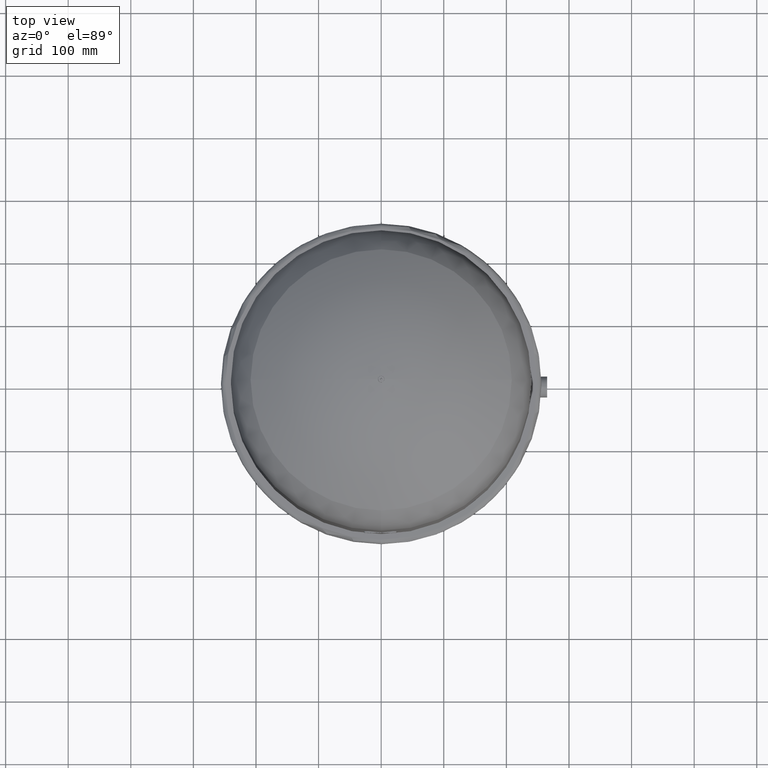
[diagram: clean part render]
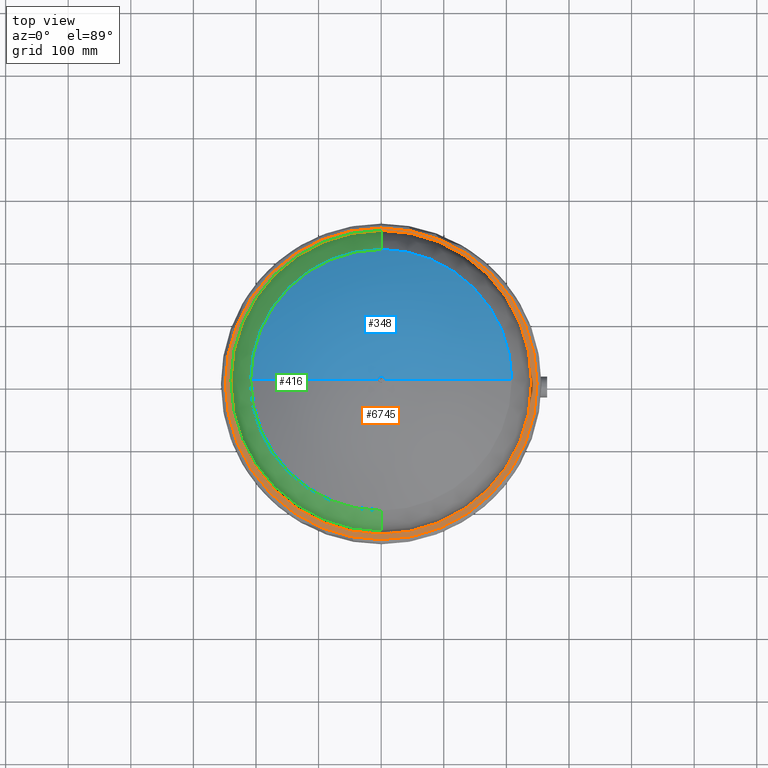
[diagram: same view with three faces highlighted in distinct colors, each labeled with its STEP entity id]
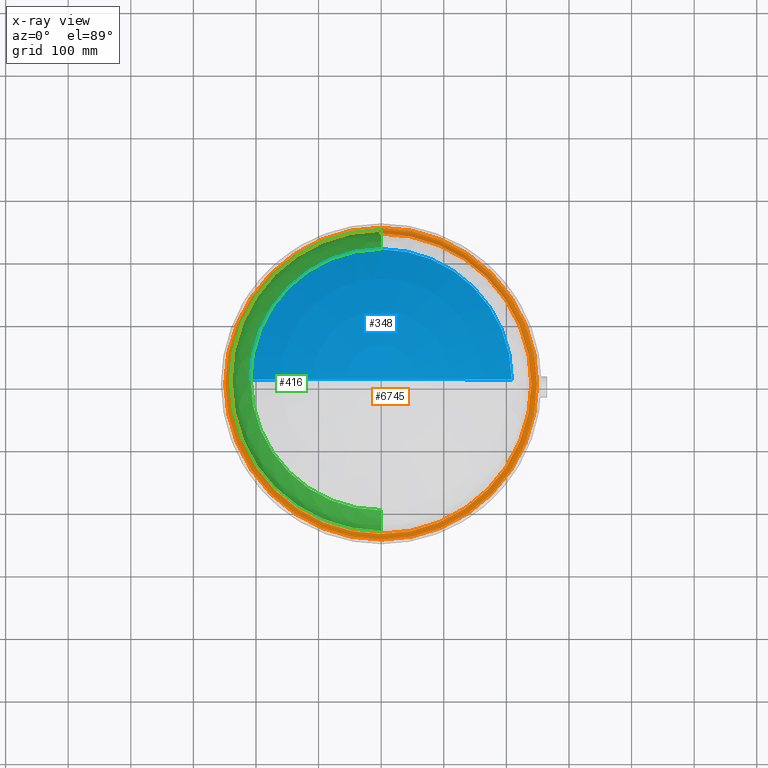
[diagram: x-ray of the same camera — body ghosted, the three highlighted faces saturated]
A machine part, top view with three faces highlighted in distinct colors.
The next image is the same camera in x-ray (body ghosted, the three faces saturated) — at least one of them is partly hidden behind the body in this view.
Their STEP definitions:

[orange] entity #6745 — the highlighted planar face has unit normal (0, 0, 1).
#6520=CARTESIAN_POINT('',(-240.0,-6.582477E-016,470.75));
#6521=VERTEX_POINT('',#6520);
#6537=CARTESIAN_POINT('',(240.0,-3.004880E-014,470.75));
#6538=VERTEX_POINT('',#6537);
#6545=CARTESIAN_POINT('',(0.0,-6.582477E-016,470.75));
#6546=DIRECTION('',(0.0,0.0,-1.0));
#6547=DIRECTION('',(-1.0,0.0,0.0));
#6548=AXIS2_PLACEMENT_3D('',#6545,#6546,#6547);
#6549=CIRCLE('',#6548,240.0);
#6550=EDGE_CURVE('',#6521,#6538,#6549,.T.);
#6674=CARTESIAN_POINT('',(0.0,249.00000000000003,470.75));
#6675=VERTEX_POINT('',#6674);
#6691=CARTESIAN_POINT('',(-3.049270E-014,-249.00000000000003,470.75));
#6692=VERTEX_POINT('',#6691);
#6700=CARTESIAN_POINT('',(-249.00000000000003,-6.582477E-016,470.75));
#6701=VERTEX_POINT('',#6700);
#6702=CARTESIAN_POINT('',(0.0,-6.582477E-016,470.75));
#6703=DIRECTION('',(0.0,0.0,-1.0));
#6704=DIRECTION('',(-1.0,0.0,0.0));
#6705=AXIS2_PLACEMENT_3D('',#6702,#6703,#6704);
#6706=CIRCLE('',#6705,249.00000000000003);
#6707=EDGE_CURVE('',#6692,#6701,#6706,.T.);
#6709=CARTESIAN_POINT('',(0.0,-6.582477E-016,470.75));
#6710=DIRECTION('',(0.0,0.0,-1.0));
#6711=DIRECTION('',(-1.0,0.0,0.0));
#6712=AXIS2_PLACEMENT_3D('',#6709,#6710,#6711);
#6713=CIRCLE('',#6712,249.00000000000003);
#6714=EDGE_CURVE('',#6701,#6675,#6713,.T.);
#6719=CARTESIAN_POINT('',(-244.50000000000003,-6.582477E-016,470.75));
#6720=DIRECTION('',(0.0,0.0,1.0));
#6721=DIRECTION('',(0.0,-1.0,0.0));
#6722=AXIS2_PLACEMENT_3D('',#6719,#6720,#6721);
#6723=PLANE('',#6722);
#6724=ORIENTED_EDGE('',*,*,#6714,.F.);
#6725=ORIENTED_EDGE('',*,*,#6707,.F.);
#6726=CARTESIAN_POINT('',(0.0,-6.582477E-016,470.75));
#6727=DIRECTION('',(0.0,0.0,-1.0));
#6728=DIRECTION('',(-1.0,0.0,0.0));
#6729=AXIS2_PLACEMENT_3D('',#6726,#6727,#6728);
#6730=CIRCLE('',#6729,249.00000000000003);
#6731=EDGE_CURVE('',#6675,#6692,#6730,.T.);
#6732=ORIENTED_EDGE('',*,*,#6731,.F.);
#6733=EDGE_LOOP('',(#6724,#6725,#6732));
#6734=FACE_OUTER_BOUND('',#6733,.T.);
#6735=ORIENTED_EDGE('',*,*,#6550,.T.);
#6736=CARTESIAN_POINT('',(0.0,-6.582477E-016,470.75));
#6737=DIRECTION('',(0.0,0.0,-1.0));
#6738=DIRECTION('',(-1.0,0.0,0.0));
#6739=AXIS2_PLACEMENT_3D('',#6736,#6737,#6738);
#6740=CIRCLE('',#6739,240.0);
#6741=EDGE_CURVE('',#6538,#6521,#6740,.T.);
#6742=ORIENTED_EDGE('',*,*,#6741,.T.);
#6743=EDGE_LOOP('',(#6735,#6742));
#6744=FACE_BOUND('',#6743,.T.);
#6745=ADVANCED_FACE('',(#6734,#6744),#6723,.T.);

[blue] entity #348 — the highlighted spherical surface has radius 354 mm.
#269=CARTESIAN_POINT('',(-2.554198E-014,208.57297297297296,833.03026928144413));
#270=VERTEX_POINT('',#269);
#278=CARTESIAN_POINT('',(208.57297297297296,-6.502875E-014,833.03026928144413));
#279=VERTEX_POINT('',#278);
#280=CARTESIAN_POINT('',(0.0,-1.248584E-014,833.03026928144413));
#281=DIRECTION('',(0.0,0.0,1.0));
#282=DIRECTION('',(-1.0,0.0,0.0));
#283=AXIS2_PLACEMENT_3D('',#280,#281,#282);
#284=CIRCLE('',#283,208.57297297297296);
#285=EDGE_CURVE('',#279,#270,#284,.T.);
#302=CARTESIAN_POINT('',(-2.167553E-014,-6.502875E-014,901.0));
#303=VERTEX_POINT('',#302);
#304=CARTESIAN_POINT('',(0.0,-6.502875E-014,547.0));
#305=DIRECTION('',(0.0,1.0,0.0));
#306=DIRECTION('',(1.0,0.0,0.0));
#307=AXIS2_PLACEMENT_3D('',#304,#305,#306);
#308=CIRCLE('',#307,354.0);
#309=EDGE_CURVE('',#303,#279,#308,.T.);
#311=CARTESIAN_POINT('',(-208.57297297297296,-1.248584E-014,833.03026928144413));
#312=VERTEX_POINT('',#311);
#313=CARTESIAN_POINT('',(0.0,-6.502875E-014,547.0));
#314=DIRECTION('',(0.0,-1.0,0.0));
#315=DIRECTION('',(-1.0,0.0,0.0));
#316=AXIS2_PLACEMENT_3D('',#313,#314,#315);
#317=CIRCLE('',#316,354.0);
#318=EDGE_CURVE('',#303,#312,#317,.T.);
#331=CARTESIAN_POINT('',(0.0,-6.502875E-014,547.0));
#332=DIRECTION('',(0.0,0.0,1.0));
#333=DIRECTION('',(1.0,0.0,0.0));
#334=AXIS2_PLACEMENT_3D('',#331,#332,#333);
#335=SPHERICAL_SURFACE('',#334,354.0);
#336=ORIENTED_EDGE('',*,*,#309,.T.);
#337=ORIENTED_EDGE('',*,*,#285,.T.);
#338=CARTESIAN_POINT('',(0.0,-1.248584E-014,833.03026928144413));
#339=DIRECTION('',(0.0,0.0,1.0));
#340=DIRECTION('',(-1.0,0.0,0.0));
#341=AXIS2_PLACEMENT_3D('',#338,#339,#340);
#342=CIRCLE('',#341,208.57297297297296);
#343=EDGE_CURVE('',#270,#312,#342,.T.);
#344=ORIENTED_EDGE('',*,*,#343,.T.);
#345=ORIENTED_EDGE('',*,*,#318,.F.);
#346=EDGE_LOOP('',(#336,#337,#344,#345));
#347=FACE_OUTER_BOUND('',#346,.T.);
#348=ADVANCED_FACE('',(#347),#335,.T.);

[green] entity #416 — the highlighted face is a freeform B-spline surface patch.
#153=CARTESIAN_POINT('',(-240.00000000000006,-2.384045E-014,771.21864329265759));
#154=VERTEX_POINT('',#153);
#178=CARTESIAN_POINT('',(0.0,-240.00000000000009,771.21864329265759));
#179=VERTEX_POINT('',#178);
#187=CARTESIAN_POINT('',(0.0,-2.384045E-014,771.21864329265759));
#188=DIRECTION('',(0.0,0.0,1.0));
#189=DIRECTION('',(-1.0,0.0,0.0));
#190=AXIS2_PLACEMENT_3D('',#187,#188,#189);
#191=CIRCLE('',#190,240.00000000000006);
#192=EDGE_CURVE('',#154,#179,#191,.T.);
#250=CARTESIAN_POINT('',(0.0,-208.57297297297296,833.03026928144413));
#251=VERTEX_POINT('',#250);
#252=CARTESIAN_POINT('',(0.0,-163.50000000000003,771.21864329265759));
#253=DIRECTION('',(-1.0,0.0,0.0));
#254=DIRECTION('',(0.0,-1.0,0.0));
#255=AXIS2_PLACEMENT_3D('',#252,#253,#254);
#256=CIRCLE('',#255,76.5);
#257=EDGE_CURVE('',#179,#251,#256,.T.);
#260=CARTESIAN_POINT('',(-2.939055E-014,240.00000000000003,771.21864329265759));
#261=VERTEX_POINT('',#260);
#269=CARTESIAN_POINT('',(-2.554198E-014,208.57297297297296,833.03026928144413));
#270=VERTEX_POINT('',#269);
#271=CARTESIAN_POINT('',(-2.002231E-014,163.49999999999997,771.21864329265759));
#272=DIRECTION('',(1.0,0.0,0.0));
#273=DIRECTION('',(0.0,1.0,0.0));
#274=AXIS2_PLACEMENT_3D('',#271,#272,#273);
#275=CIRCLE('',#274,76.5);
#276=EDGE_CURVE('',#261,#270,#275,.T.);
#311=CARTESIAN_POINT('',(-208.57297297297296,-1.248584E-014,833.03026928144413));
#312=VERTEX_POINT('',#311);
#320=CARTESIAN_POINT('',(0.0,-1.248584E-014,833.03026928144413));
#321=DIRECTION('',(0.0,0.0,1.0));
#322=DIRECTION('',(-1.0,0.0,0.0));
#323=AXIS2_PLACEMENT_3D('',#320,#321,#322);
#324=CIRCLE('',#323,208.57297297297296);
#325=EDGE_CURVE('',#312,#251,#324,.T.);
#338=CARTESIAN_POINT('',(0.0,-1.248584E-014,833.03026928144413));
#339=DIRECTION('',(0.0,0.0,1.0));
#340=DIRECTION('',(-1.0,0.0,0.0));
#341=AXIS2_PLACEMENT_3D('',#338,#339,#340);
#342=CIRCLE('',#341,208.57297297297296);
#343=EDGE_CURVE('',#270,#312,#342,.T.);
#349=CARTESIAN_POINT('',(-1.065408E-014,86.999999999999972,771.21864329265759));
#350=CARTESIAN_POINT('',(-1.065408E-014,86.999999999999943,847.71864329265748));
#351=CARTESIAN_POINT('',(-2.002231E-014,163.49999999999997,847.71864329265759));
#352=CARTESIAN_POINT('',(-2.939055E-014,240.0,847.7186432926577));
#353=CARTESIAN_POINT('',(-2.939055E-014,239.99999999999997,771.21864329265759));
#354=CARTESIAN_POINT('',(-87.0,86.999999999999957,771.21864329265759));
#355=CARTESIAN_POINT('',(-86.999999999999957,86.999999999999929,847.71864329265759));
#356=CARTESIAN_POINT('',(-163.49999999999997,163.49999999999991,847.71864329265759));
#357=CARTESIAN_POINT('',(-239.99999999999997,239.99999999999991,847.71864329265759));
#358=CARTESIAN_POINT('',(-239.99999999999994,239.99999999999986,771.21864329265759));
#359=CARTESIAN_POINT('',(-87.0,-3.449452E-014,771.21864329265759));
#360=CARTESIAN_POINT('',(-86.999999999999957,-2.044170E-014,847.71864329265748));
#361=CARTESIAN_POINT('',(-163.49999999999997,-2.980994E-014,847.71864329265759));
#362=CARTESIAN_POINT('',(-240.0,-3.917818E-014,847.7186432926577));
#363=CARTESIAN_POINT('',(-240.0,-5.323100E-014,771.21864329265759));
#364=CARTESIAN_POINT('',(-86.999999999999972,-87.000000000000014,771.21864329265759));
#365=CARTESIAN_POINT('',(-86.999999999999929,-86.999999999999957,847.71864329265759));
#366=CARTESIAN_POINT('',(-163.49999999999991,-163.49999999999997,847.71864329265759));
#367=CARTESIAN_POINT('',(-239.99999999999991,-239.99999999999997,847.71864329265759));
#368=CARTESIAN_POINT('',(-239.99999999999991,-240.0,771.21864329265759));
#369=CARTESIAN_POINT('',(1.065408E-014,-87.000000000000028,771.21864329265759));
#370=CARTESIAN_POINT('',(1.065408E-014,-86.999999999999972,847.71864329265748));
#371=CARTESIAN_POINT('',(2.002231E-014,-163.49999999999997,847.71864329265759));
#372=CARTESIAN_POINT('',(2.939055E-014,-240.0,847.7186432926577));
#373=CARTESIAN_POINT('',(2.939055E-014,-240.00000000000003,771.21864329265759));
#374=CARTESIAN_POINT('',(87.0,-87.0,771.21864329265759));
#375=CARTESIAN_POINT('',(86.999999999999957,-86.999999999999943,847.71864329265759));
#376=CARTESIAN_POINT('',(163.49999999999997,-163.49999999999994,847.71864329265759));
#377=CARTESIAN_POINT('',(239.99999999999997,-239.99999999999991,847.71864329265759));
#378=CARTESIAN_POINT('',(239.99999999999994,-239.99999999999994,771.21864329265759));
#379=CARTESIAN_POINT('',(87.0,-1.318637E-014,771.21864329265759));
#380=CARTESIAN_POINT('',(86.999999999999957,8.664488E-016,847.71864329265748));
#381=CARTESIAN_POINT('',(163.49999999999997,1.023469E-014,847.71864329265759));
#382=CARTESIAN_POINT('',(240.0,1.960293E-014,847.7186432926577));
#383=CARTESIAN_POINT('',(240.0,5.550104E-015,771.21864329265759));
#384=CARTESIAN_POINT('',(86.999999999999972,86.999999999999972,771.21864329265759));
#385=CARTESIAN_POINT('',(86.999999999999929,86.999999999999943,847.71864329265759));
#386=CARTESIAN_POINT('',(163.49999999999991,163.49999999999994,847.71864329265759));
#387=CARTESIAN_POINT('',(239.99999999999991,239.99999999999997,847.71864329265759));
#388=CARTESIAN_POINT('',(239.99999999999991,239.99999999999994,771.21864329265759));
#389=CARTESIAN_POINT('',(-1.065408E-014,86.999999999999972,771.21864329265759));
#390=CARTESIAN_POINT('',(-1.065408E-014,86.999999999999943,847.71864329265748));
#391=CARTESIAN_POINT('',(-2.002231E-014,163.49999999999997,847.71864329265759));
#392=CARTESIAN_POINT('',(-2.939055E-014,240.0,847.7186432926577));
#393=CARTESIAN_POINT('',(-2.939055E-014,239.99999999999997,771.21864329265759));
#401=(BOUNDED_SURFACE()B_SPLINE_SURFACE(2,2,((#349,#354,#359,#364,#369,#374,#379,#384,#389),(#350,#355,#360,#365,#370,#375,#380,#385,#390),(#351,#356,#361,#366,#371,#376,#381,#386,#391),(#352,#357,#362,#367,#372,#377,#382,#387,#392),(#353,#358,#363,#368,#373,#378,#383,#388,#393)),.UNSPECIFIED.,.F.,.T.,.U.)B_SPLINE_SURFACE_WITH_KNOTS((3,2,3),(3,2,2,2,3),(-3.141592653589794,-1.570796326794897,5.763044E-016),(0.0,1.570796326794897,3.141592653589793,4.71238898038469,6.283185307179586),.UNSPECIFIED.)GEOMETRIC_REPRESENTATION_ITEM()RATIONAL_B_SPLINE_SURFACE(((1.0,0.707106781186548,1.0,0.707106781186548,1.0,0.707106781186548,1.0,0.707106781186548,1.0),(0.707106781186549,0.500000000000001,0.707106781186549,0.500000000000001,0.707106781186549,0.500000000000001,0.707106781186549,0.500000000000001,0.707106781186549),(1.0,0.707106781186548,1.0,0.707106781186548,1.0,0.707106781186548,1.0,0.707106781186548,1.0),(0.707106781186545,0.499999999999998,0.707106781186545,0.499999999999998,0.707106781186545,0.499999999999998,0.707106781186545,0.499999999999998,0.707106781186545),(1.0,0.707106781186548,1.0,0.707106781186548,1.0,0.707106781186548,1.0,0.707106781186548,1.0)))REPRESENTATION_ITEM('')SURFACE());
#402=ORIENTED_EDGE('',*,*,#257,.T.);
#403=ORIENTED_EDGE('',*,*,#325,.F.);
#404=ORIENTED_EDGE('',*,*,#343,.F.);
#405=ORIENTED_EDGE('',*,*,#276,.F.);
#406=CARTESIAN_POINT('',(0.0,-2.384045E-014,771.21864329265759));
#407=DIRECTION('',(0.0,0.0,1.0));
#408=DIRECTION('',(-1.0,0.0,0.0));
#409=AXIS2_PLACEMENT_3D('',#406,#407,#408);
#410=CIRCLE('',#409,240.00000000000006);
#411=EDGE_CURVE('',#261,#154,#410,.T.);
#412=ORIENTED_EDGE('',*,*,#411,.T.);
#413=ORIENTED_EDGE('',*,*,#192,.T.);
#414=EDGE_LOOP('',(#402,#403,#404,#405,#412,#413));
#415=FACE_OUTER_BOUND('',#414,.T.);
#416=ADVANCED_FACE('',(#415),#401,.T.);